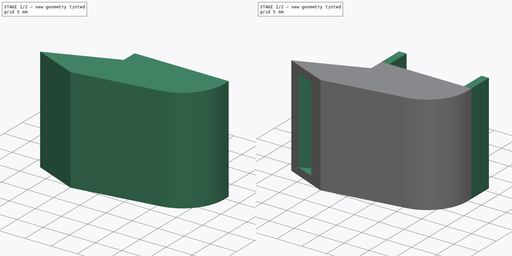
[diagram: build sequence overview — one tinted view per stage of 2, left to right]
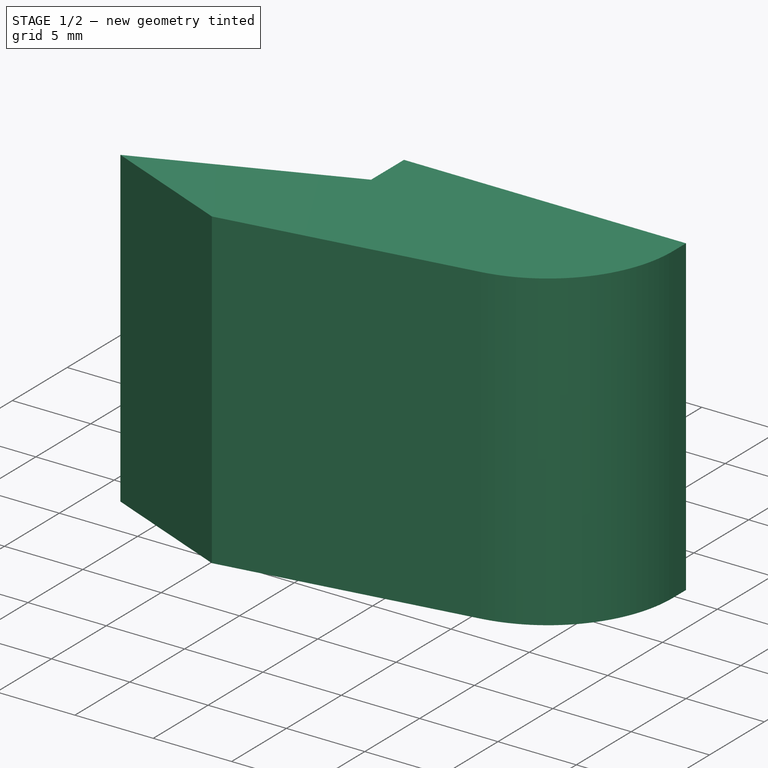
[diagram: stage 1 of 2 — iso view after this stage's code; geometry added in this stage tinted green]
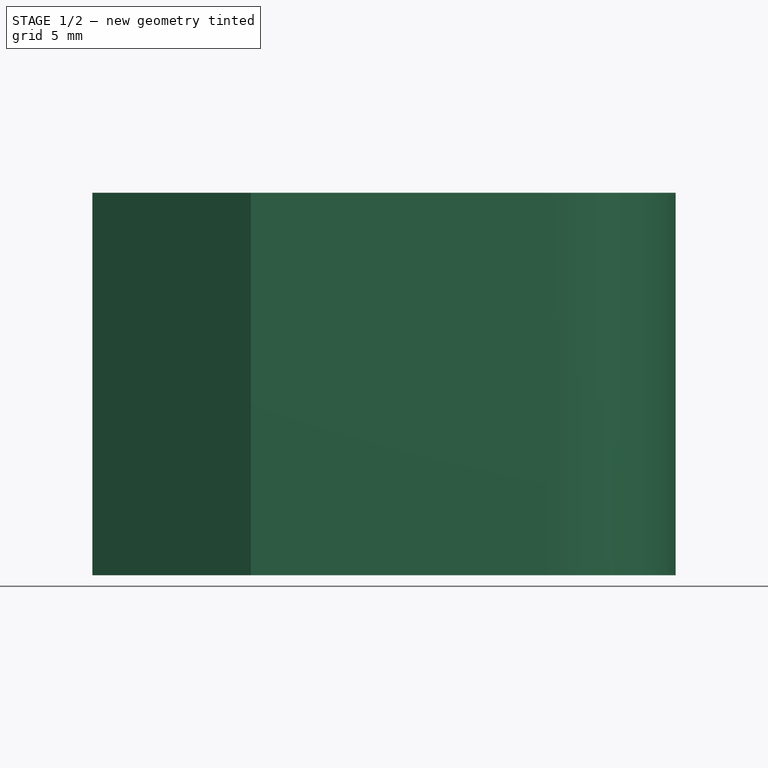
[diagram: stage 1 of 2 — front view after this stage's code; geometry added in this stage tinted green]
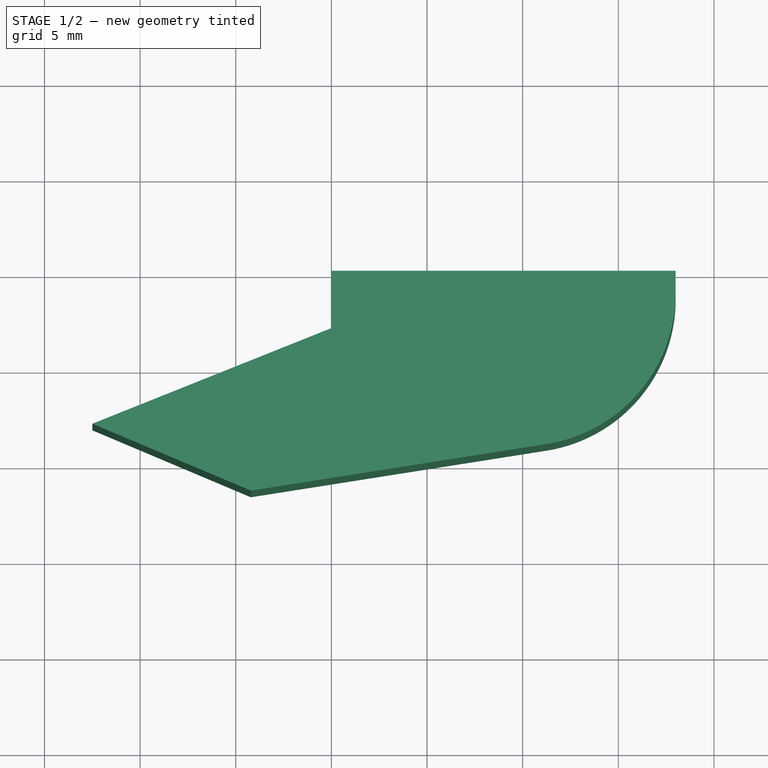
[diagram: stage 1 of 2 — top view after this stage's code; geometry added in this stage tinted green]
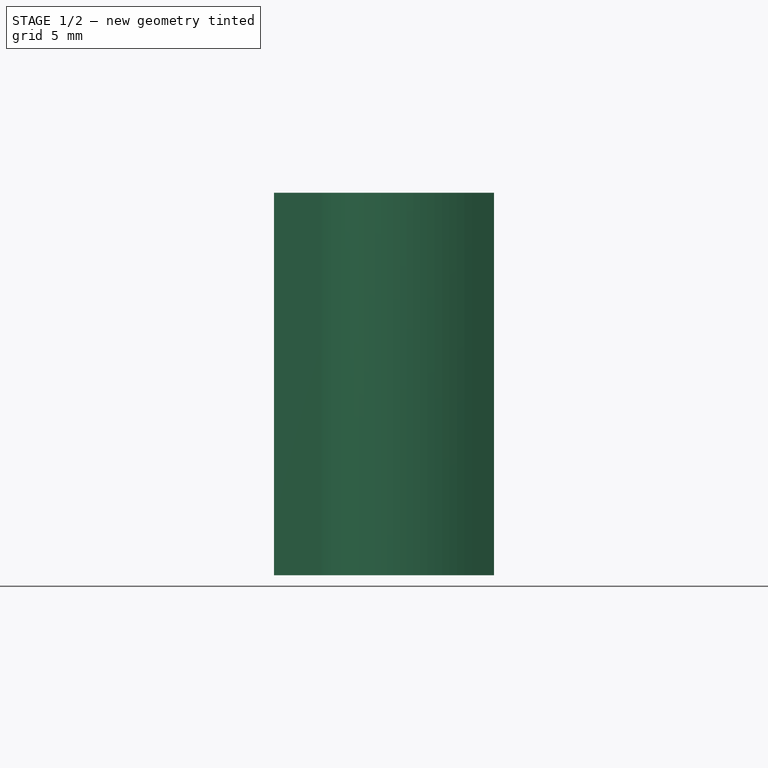
[diagram: stage 1 of 2 — right view after this stage's code; geometry added in this stage tinted green]
FCSTD DOCUMENT  (FreeCAD 0.16R)
Label: fanduct2
License: All rights reserved
LicenseURL: http://en.wikipedia.org/wiki/All_rights_reserved
objects: Sketcher::SketchObject×3, PartDesign::Pad×2, PartDesign::Fillet×1, Part::Thickness×1
note: 9 computed .brp shape members not serialized (recipe doc carries the construction recipe); baked Part::Feature solids carry a one-line shape summary decoded from their .brp

FEATURE [Sketcher::SketchObject] Sketch
  sketch-geometry (6):
    g0: LineSegment StartX=0 StartY=0 StartZ=0 EndX=18 EndY=0 EndZ=0
    g1: LineSegment StartX=18 StartY=0 StartZ=0 EndX=18 EndY=-8 EndZ=0
    g2: LineSegment StartX=18 StartY=-8 StartZ=0 EndX=-4.20844 EndY=-11.5 EndZ=0
    g3: LineSegment StartX=-4.20844 StartY=-11.5 StartZ=0 EndX=-12.5 EndY=-8 EndZ=0
    g4: LineSegment StartX=-12.5 StartY=-8 StartZ=0 EndX=0 EndY=-3 EndZ=0
    g5: LineSegment StartX=0 StartY=-3 StartZ=0 EndX=0 EndY=0 EndZ=0
  constraints (17):
    c: Coincident(g-1,g0)
    c: Horizontal(g0)
    c: Coincident(g0,g1)
    c: Vertical(g1)
    c: Coincident(g1,g2)
    c: Coincident(g2,g3)
    c: Coincident(g3,g4)
    c: PointOnObject(g4,g-2)
    c: Coincident(g4,g5)
    c: Coincident(g5,g0)
    c: DistanceX(g3) = -12.5
    c: DistanceX(g0,g0) = 18
    c: DistanceY(g2) = -11.5
    c: Distance(g3) = 9
    c: DistanceY(g1,g1) = 8
    c: DistanceY(g5,g5) = 3
    c: DistanceY(g3) = -8
FEATURE [PartDesign::Pad] Pad
  Length = 20
  Length2 = 100
  Sketch = -> Sketch
  Type = 0
FEATURE [Sketcher::SketchObject] Sketch002
  Placement = pos=(0,0,1.8) rot=(0,0,1;0rad)
  sketch-geometry (4):
    g0: LineSegment StartX=1.8 StartY=-2.26367 StartZ=0 EndX=-8.03926 EndY=-8.34667 EndZ=0
    g1: LineSegment StartX=-8.03926 StartY=-8.34667 StartZ=0 EndX=-6.54475 EndY=-11.3257 EndZ=0
    g2: LineSegment StartX=-6.54475 StartY=-11.3257 StartZ=0 EndX=-1.33443 EndY=-7.99112 EndZ=0
    g3: LineSegment StartX=-1.33443 StartY=-7.99112 StartZ=0 EndX=1.8 EndY=-2.26367 EndZ=0
  constraints (4):
    c: Coincident(g0,g1)
    c: Coincident(g1,g2)
    c: Coincident(g2,g3)
    c: Coincident(g3,g0)
FEATURE [PartDesign::Fillet] Fillet
  Base = -> Pad [Edge5]
  Radius = 8
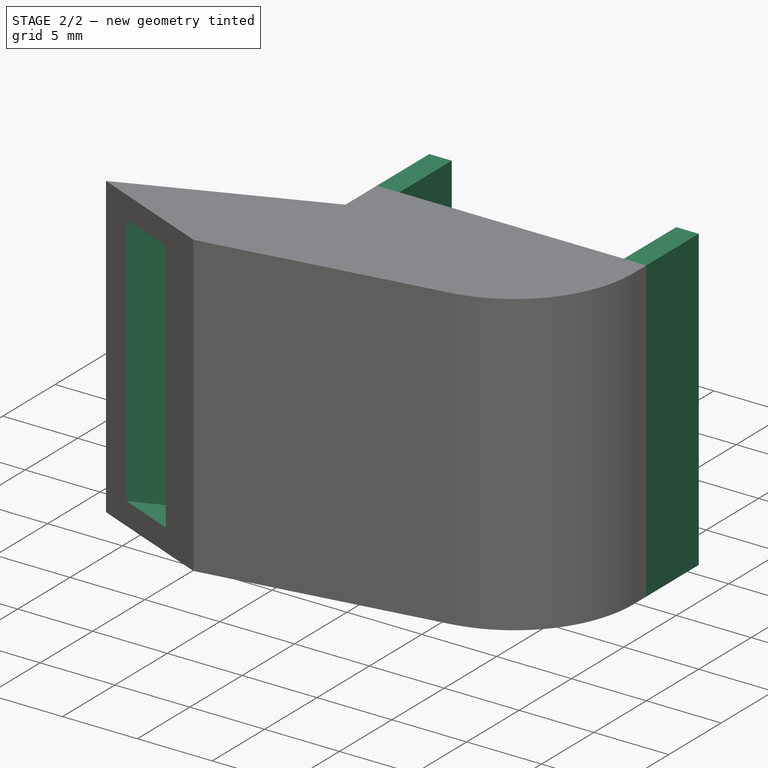
[diagram: stage 2 of 2 — iso view after this stage's code; geometry added in this stage tinted green]
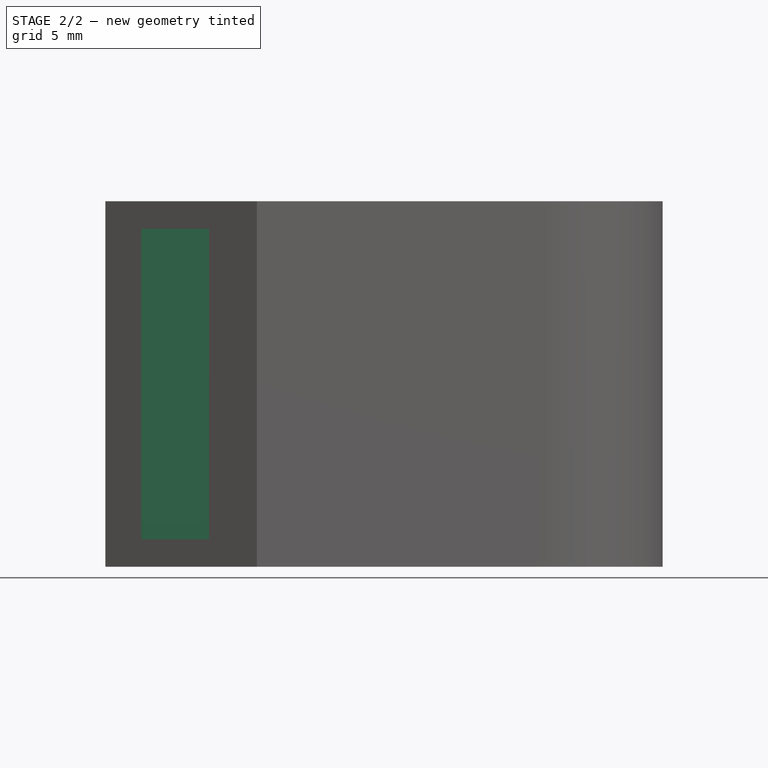
[diagram: stage 2 of 2 — front view after this stage's code; geometry added in this stage tinted green]
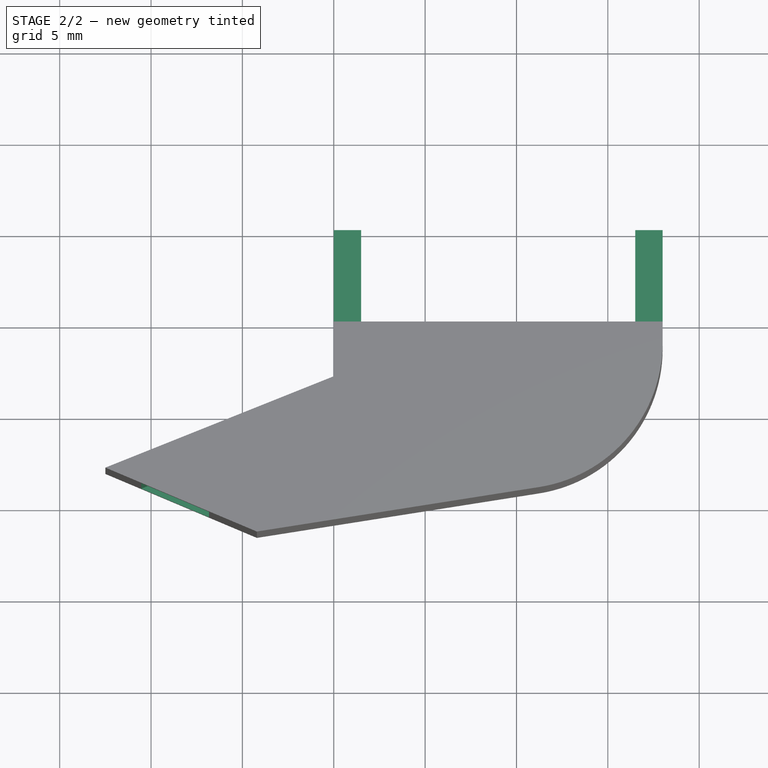
[diagram: stage 2 of 2 — top view after this stage's code; geometry added in this stage tinted green]
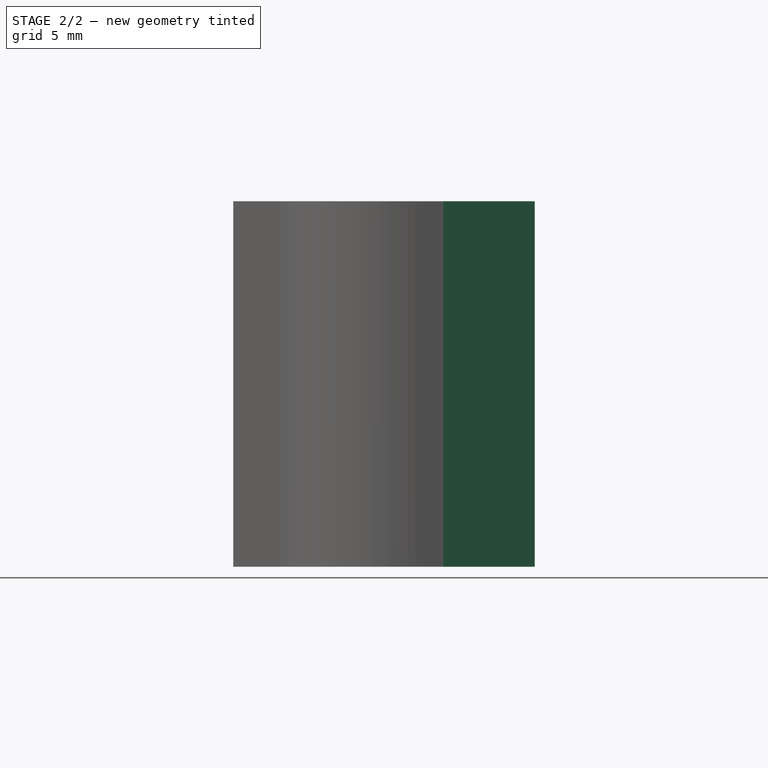
[diagram: stage 2 of 2 — right view after this stage's code; geometry added in this stage tinted green]
FEATURE [Part::Thickness] Thickness
  Faces = -> Fillet [Face4,Face8]
  Intersection = false
  Join = 0
  Mode = 0
  SelfIntersection = false
  Value = -1.5
FEATURE [Sketcher::SketchObject] Sketch001
  Placement = pos=(0,0,0) rot=(0,0.707107,0.707107;3.14159rad)
  Support = -> Thickness [Face8]
  sketch-geometry (8):
    g0: LineSegment StartX=-18 StartY=20 StartZ=0 EndX=-16.5 EndY=20 EndZ=0
    g1: LineSegment StartX=-16.5 StartY=20 StartZ=0 EndX=-16.5 EndY=0 EndZ=0
    g2: LineSegment StartX=-16.5 StartY=0 StartZ=0 EndX=-18 EndY=0 EndZ=0
    g3: LineSegment StartX=-18 StartY=0 StartZ=0 EndX=-18 EndY=20 EndZ=0
    g4: LineSegment StartX=0 StartY=20 StartZ=0 EndX=-1.5 EndY=20 EndZ=0
    g5: LineSegment StartX=-1.5 StartY=20 StartZ=0 EndX=-1.5 EndY=0 EndZ=0
    g6: LineSegment StartX=-1.5 StartY=0 StartZ=0 EndX=0 EndY=0 EndZ=0
    g7: LineSegment StartX=0 StartY=0 StartZ=0 EndX=0 EndY=20 EndZ=0
  constraints (20):
    c: Coincident(g0,g1)
    c: Coincident(g1,g2)
    c: Coincident(g2,g3)
    c: Coincident(g3,g0)
    c: Horizontal(g0)
    c: Horizontal(g2)
    c: Vertical(g1)
    c: Vertical(g3)
    c: PointOnObject(g1,g-1)
    c: DistanceX(g0,g0) = 1.5
    c: Coincident(g4,g5)
    c: Coincident(g5,g6)
    c: Coincident(g6,g7)
    c: Coincident(g7,g4)
    c: Horizontal(g4)
    c: Horizontal(g6)
    c: Vertical(g5)
    c: Vertical(g7)
    c: Coincident(g6,g-1)
    c: DistanceX(g6,g6) = 1.5
FEATURE [PartDesign::Pad] Pad001
  Length = 5
  Length2 = 100
  Sketch = -> Sketch001
  Type = 0
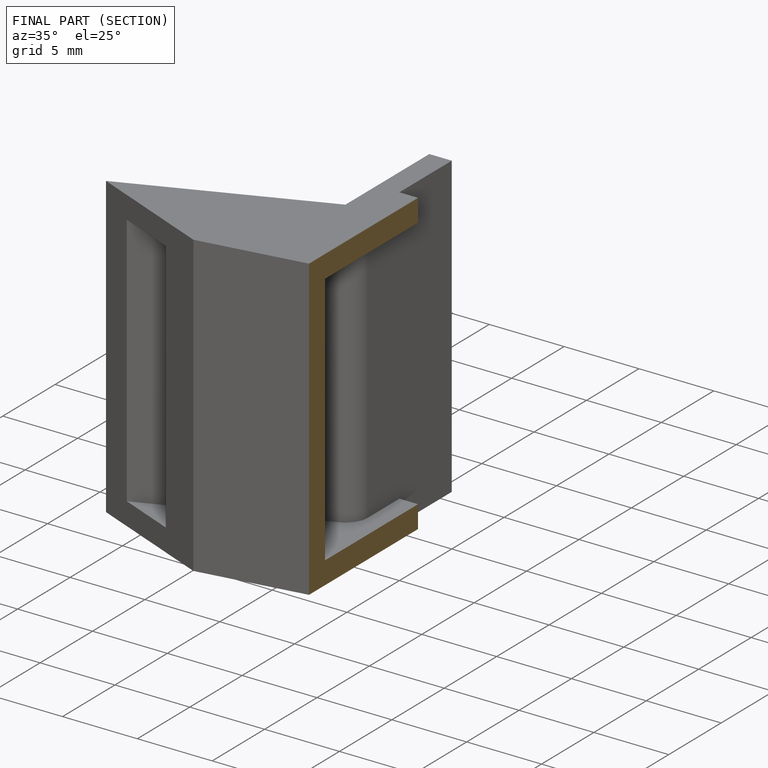
[diagram: finished part — half-section view (interior)]
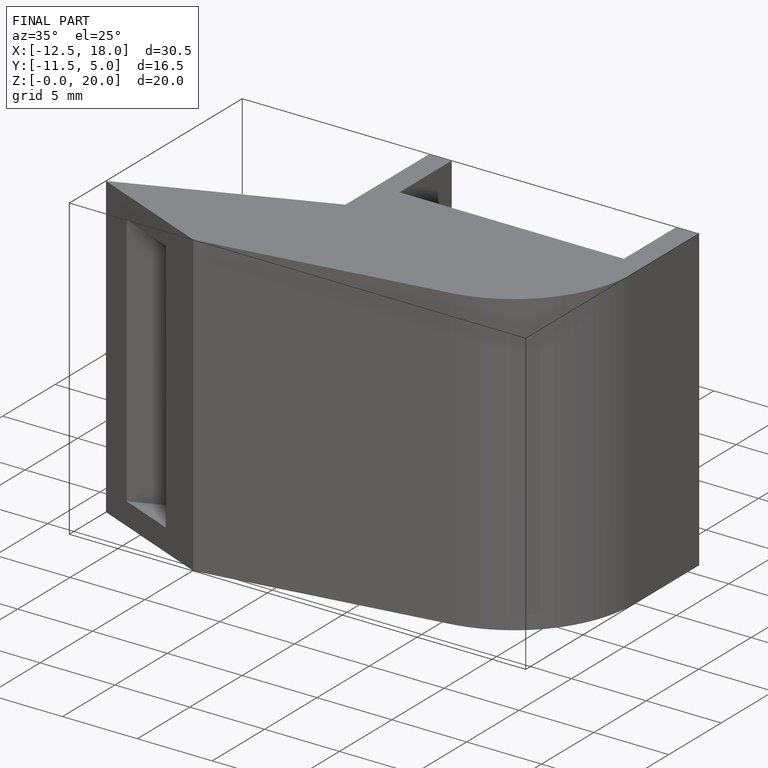
[diagram: finished part — iso view with bounding-box wireframe]
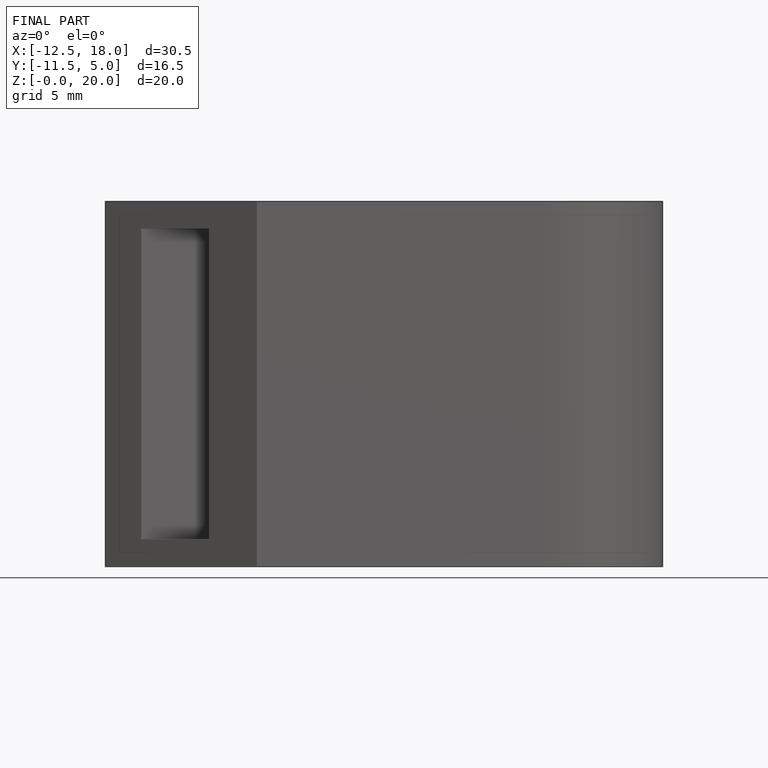
[diagram: finished part — front view with bounding-box wireframe]
